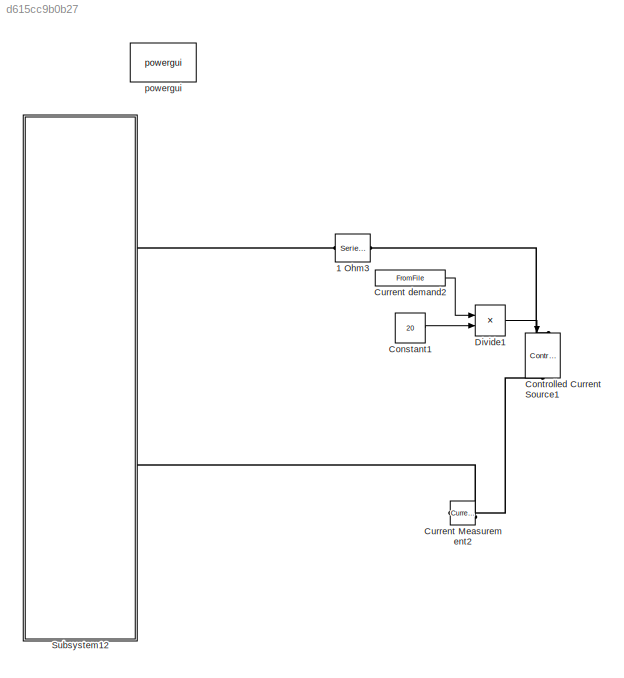
MODEL slx_d615cc9b0b27
KIND model
CONFIG AbsTol = auto
CONFIG EnableMultiTasking = off
CONFIG FixedStep = auto
CONFIG MaxStep = 0.1
CONFIG MinStep = auto
CONFIG RelTol = 1e-3
CONFIG SampleTimeConstraint = Unconstrained
CONFIG SolverName = ode23tb
CONFIG StartTime = 0.0
CONFIG StopTime = 5433
BLOCK [Reference] 1 Ohm3  REF=powerlib/Elements/Series RLC Branch
  AttributesFormatString = \n
  NameLocation = top
  Ports = [0, 0, 0, 0, 0, 1, 1]
  SourceBlock = powerlib/Elements/Series RLC Branch
  SourceProductBaseCode = PS
  SourceType = Series RLC Branch
BLOCK [Constant] Constant1
  Value = 20
BLOCK [Reference] Controlled Current Source1  REF=powerlib/Electrical
Sources/Controlled Current Source
  NameLocation = left
  Ports = [1, 0, 0, 0, 0, 1, 1]
  SourceBlock = powerlib/Electrical\nSources/Controlled Current Source
  SourceProductBaseCode = PS
  SourceType = Controlled Current Source
BLOCK [Reference] Current Measurement2  REF=powerlib/Measurements/Current Measurement
  NameLocation = top
  Ports = [0, 1, 0, 0, 0, 1, 1]
  SourceBlock = powerlib/Measurements/Current Measurement
  SourceProductBaseCode = PS
  SourceType = Current Measurement
  UserDataPersistent = on
BLOCK [FromFile] Current demand2
  FileName = <path>
  NameLocation = top
  OutDataTypeStr = double
  SampleTime = 0
BLOCK [Product] Divide1
  Inputs = */
  Ports = [2, 1]
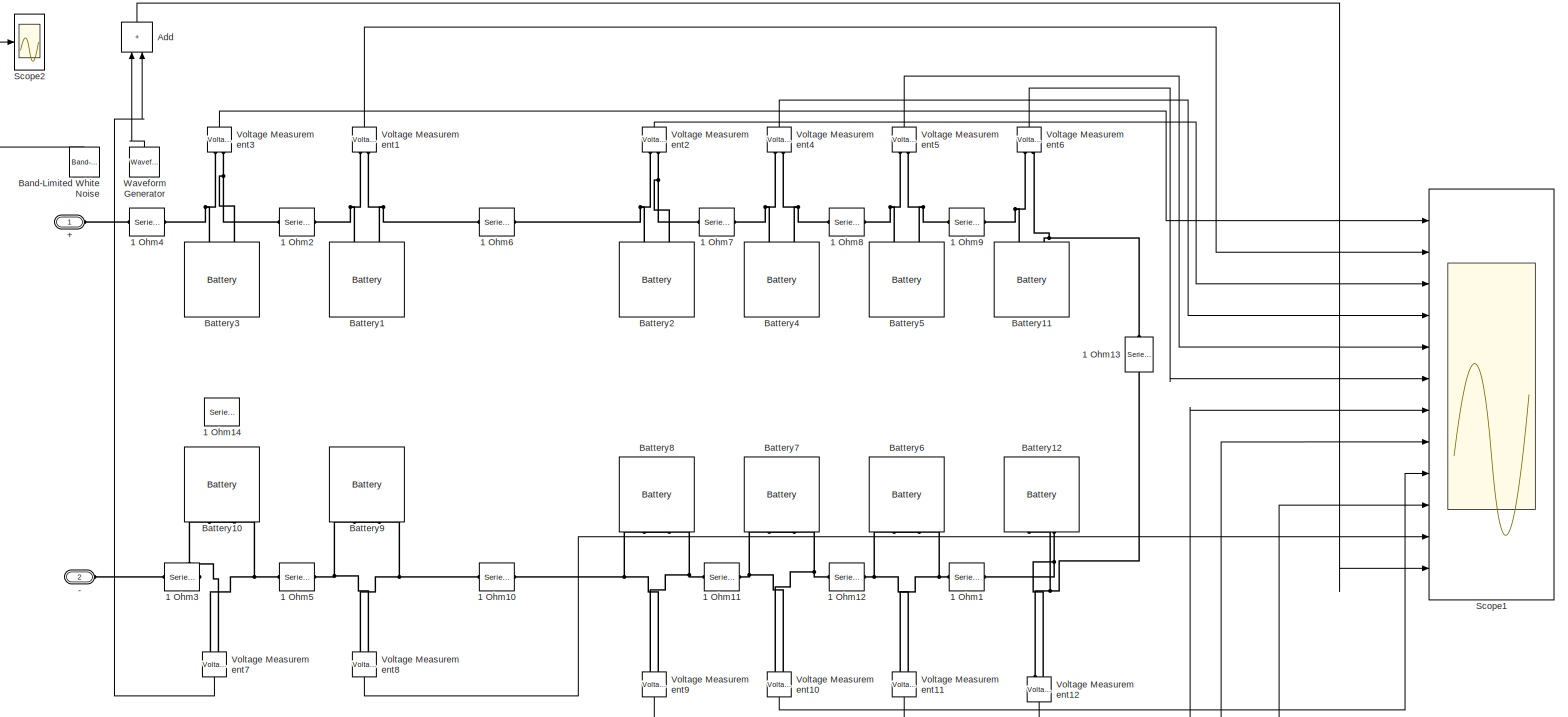
[diagram: Subsystem12 - part 1/1, most of the canvas]
BLOCK [SubSystem] Subsystem12
  NameLocation = top
  Ports = [0, 0, 0, 0, 0, 2]
  RequestExecContextInheritance = off
BLOCK [PMIOPort] Subsystem12/+
  NameLocation = top
  Side = Left
BLOCK [PMIOPort] Subsystem12/-
  NameLocation = top
  Port = 2
  Side = Left
BLOCK [Reference] Subsystem12/1 Ohm1  REF=powerlib/Elements/Series RLC Branch
  AttributesFormatString = \n
  NameLocation = top
  Ports = [0, 0, 0, 0, 0, 1, 1]
  SourceBlock = powerlib/Elements/Series RLC Branch
  SourceProductBaseCode = PS
  SourceType = Series RLC Branch
BLOCK [Reference] Subsystem12/1 Ohm10  REF=powerlib/Elements/Series RLC Branch
  AttributesFormatString = \n
  NameLocation = top
  Ports = [0, 0, 0, 0, 0, 1, 1]
  SourceBlock = powerlib/Elements/Series RLC Branch
  SourceProductBaseCode = PS
  SourceType = Series RLC Branch
BLOCK [Reference] Subsystem12/1 Ohm11  REF=powerlib/Elements/Series RLC Branch
  AttributesFormatString = \n
  NameLocation = top
  Ports = [0, 0, 0, 0, 0, 1, 1]
  SourceBlock = powerlib/Elements/Series RLC Branch
  SourceProductBaseCode = PS
  SourceType = Series RLC Branch
BLOCK [Reference] Subsystem12/1 Ohm12  REF=powerlib/Elements/Series RLC Branch
  AttributesFormatString = \n
  NameLocation = top
  Ports = [0, 0, 0, 0, 0, 1, 1]
  SourceBlock = powerlib/Elements/Series RLC Branch
  SourceProductBaseCode = PS
  SourceType = Series RLC Branch
BLOCK [Reference] Subsystem12/1 Ohm13  REF=powerlib/Elements/Series RLC Branch
  AttributesFormatString = \n
  NameLocation = right
  Ports = [0, 0, 0, 0, 0, 1, 1]
  SourceBlock = powerlib/Elements/Series RLC Branch
  SourceProductBaseCode = PS
  SourceType = Series RLC Branch
BLOCK [Reference] Subsystem12/1 Ohm14  REF=powerlib/Elements/Series RLC Branch
  AttributesFormatString = \n
  NameLocation = top
  Ports = [0, 0, 0, 0, 0, 1, 1]
  SourceBlock = powerlib/Elements/Series RLC Branch
  SourceProductBaseCode = PS
  SourceType = Series RLC Branch
BLOCK [Reference] Subsystem12/1 Ohm2  REF=powerlib/Elements/Series RLC Branch
  AttributesFormatString = \n
  NameLocation = top
  Ports = [0, 0, 0, 0, 0, 1, 1]
  SourceBlock = powerlib/Elements/Series RLC Branch
  SourceProductBaseCode = PS
  SourceType = Series RLC Branch
BLOCK [Reference] Subsystem12/1 Ohm3  REF=powerlib/Elements/Series RLC Branch
  AttributesFormatString = \n
  NameLocation = top
  Ports = [0, 0, 0, 0, 0, 1, 1]
  SourceBlock = powerlib/Elements/Series RLC Branch
  SourceProductBaseCode = PS
  SourceType = Series RLC Branch
BLOCK [Reference] Subsystem12/1 Ohm4  REF=powerlib/Elements/Series RLC Branch
  AttributesFormatString = \n
  NameLocation = top
  Ports = [0, 0, 0, 0, 0, 1, 1]
  SourceBlock = powerlib/Elements/Series RLC Branch
  SourceProductBaseCode = PS
  SourceType = Series RLC Branch
BLOCK [Reference] Subsystem12/1 Ohm5  REF=powerlib/Elements/Series RLC Branch
  AttributesFormatString = \n
  NameLocation = top
  Ports = [0, 0, 0, 0, 0, 1, 1]
  SourceBlock = powerlib/Elements/Series RLC Branch
  SourceProductBaseCode = PS
  SourceType = Series RLC Branch
BLOCK [Reference] Subsystem12/1 Ohm6  REF=powerlib/Elements/Series RLC Branch
  AttributesFormatString = \n
  NameLocation = top
  Ports = [0, 0, 0, 0, 0, 1, 1]
  SourceBlock = powerlib/Elements/Series RLC Branch
  SourceProductBaseCode = PS
  SourceType = Series RLC Branch
BLOCK [Reference] Subsystem12/1 Ohm7  REF=powerlib/Elements/Series RLC Branch
  AttributesFormatString = \n
  NameLocation = top
  Ports = [0, 0, 0, 0, 0, 1, 1]
  SourceBlock = powerlib/Elements/Series RLC Branch
  SourceProductBaseCode = PS
  SourceType = Series RLC Branch
BLOCK [Reference] Subsystem12/1 Ohm8  REF=powerlib/Elements/Series RLC Branch
  AttributesFormatString = \n
  NameLocation = top
  Ports = [0, 0, 0, 0, 0, 1, 1]
  SourceBlock = powerlib/Elements/Series RLC Branch
  SourceProductBaseCode = PS
  SourceType = Series RLC Branch
BLOCK [Reference] Subsystem12/1 Ohm9  REF=powerlib/Elements/Series RLC Branch
  AttributesFormatString = \n
  NameLocation = top
  Ports = [0, 0, 0, 0, 0, 1, 1]
  SourceBlock = powerlib/Elements/Series RLC Branch
  SourceProductBaseCode = PS
  SourceType = Series RLC Branch
BLOCK [Sum] Subsystem12/Add
  IconShape = rectangular
  NameLocation = right
  Ports = [2, 1]
BLOCK [Reference] Subsystem12/Band-Limited White Noise  REF=simulink/Sources/Band-Limited
White Noise
  NameLocation = left
  Ports = [0, 1]
  SourceBlock = simulink/Sources/Band-Limited\nWhite Noise
  SourceProductBaseCode = SL
  SourceType = Band-Limited White Noise.
BLOCK [Reference] Subsystem12/Battery1  REF=electricdrivelib/Extra Sources/Battery
  NameLocation = right
  Ports = [0, 1, 0, 0, 0, 2]
  SourceBlock = electricdrivelib/Extra Sources/Battery
  SourceProductBaseCode = PS
  SourceType = Battery
BLOCK [Reference] Subsystem12/Battery10  REF=electricdrivelib/Extra Sources/Battery
  NameLocation = right
  Ports = [0, 1, 0, 0, 0, 2]
  SourceBlock = electricdrivelib/Extra Sources/Battery
  SourceProductBaseCode = PS
  SourceType = Battery
BLOCK [Reference] Subsystem12/Battery11  REF=electricdrivelib/Extra Sources/Battery
  NameLocation = right
  Ports = [0, 1, 0, 0, 0, 2]
  SourceBlock = electricdrivelib/Extra Sources/Battery
  SourceProductBaseCode = PS
  SourceType = Battery
BLOCK [Reference] Subsystem12/Battery12  REF=electricdrivelib/Extra Sources/Battery
  NameLocation = right
  Ports = [0, 1, 0, 0, 0, 2]
  SourceBlock = electricdrivelib/Extra Sources/Battery
  SourceProductBaseCode = PS
  SourceType = Battery
BLOCK [Reference] Subsystem12/Battery2  REF=electricdrivelib/Extra Sources/Battery
  NameLocation = right
  Ports = [0, 1, 0, 0, 0, 2]
  SourceBlock = electricdrivelib/Extra Sources/Battery
  SourceProductBaseCode = PS
  SourceType = Battery
BLOCK [Reference] Subsystem12/Battery3  REF=electricdrivelib/Extra Sources/Battery
  NameLocation = right
  Ports = [0, 1, 0, 0, 0, 2]
  SourceBlock = electricdrivelib/Extra Sources/Battery
  SourceProductBaseCode = PS
  SourceType = Battery
BLOCK [Reference] Subsystem12/Battery4  REF=electricdrivelib/Extra Sources/Battery
  NameLocation = right
  Ports = [0, 1, 0, 0, 0, 2]
  SourceBlock = electricdrivelib/Extra Sources/Battery
  SourceProductBaseCode = PS
  SourceType = Battery
BLOCK [Reference] Subsystem12/Battery5  REF=electricdrivelib/Extra Sources/Battery
  NameLocation = right
  Ports = [0, 1, 0, 0, 0, 2]
  SourceBlock = electricdrivelib/Extra Sources/Battery
  SourceProductBaseCode = PS
  SourceType = Battery
BLOCK [Reference] Subsystem12/Battery6  REF=electricdrivelib/Extra Sources/Battery
  NameLocation = right
  Ports = [0, 1, 0, 0, 0, 2]
  SourceBlock = electricdrivelib/Extra Sources/Battery
  SourceProductBaseCode = PS
  SourceType = Battery
BLOCK [Reference] Subsystem12/Battery7  REF=electricdrivelib/Extra Sources/Battery
  NameLocation = right
  Ports = [0, 1, 0, 0, 0, 2]
  SourceBlock = electricdrivelib/Extra Sources/Battery
  SourceProductBaseCode = PS
  SourceType = Battery
BLOCK [Reference] Subsystem12/Battery8  REF=electricdrivelib/Extra Sources/Battery
  NameLocation = right
  Ports = [0, 1, 0, 0, 0, 2]
  SourceBlock = electricdrivelib/Extra Sources/Battery
  SourceProductBaseCode = PS
  SourceType = Battery
BLOCK [Reference] Subsystem12/Battery9  REF=electricdrivelib/Extra Sources/Battery
  NameLocation = right
  Ports = [0, 1, 0, 0, 0, 2]
  SourceBlock = electricdrivelib/Extra Sources/Battery
  SourceProductBaseCode = PS
  SourceType = Battery
BLOCK [Scope] Subsystem12/Scope1
  Floating = off
  NumInputPorts = 12
  Ports = [12]
  ScopeSpecificationString = Simulink.scopes.TimeScopeBlockCfg('CurrentConfiguration', extmgr.ConfigurationSet(extmgr.Configuration('Core','General UI',true),extmgr.Configuration('Core','Source UI',true),extmgr.Configuration('Sources','WiredSimulink',true,'DataLoggingVariableName','ScopeData1','DataLogging',true,'DataLoggingSaveFormat','StructureWithTime'),extmgr.Configuration('Visuals','Time Domain',true,'SerializedDisplays'...<+2082ch>
BLOCK [Scope] Subsystem12/Scope2
  Floating = off
  NumInputPorts = 1
  Ports = [1]
  ScopeSpecificationString = Simulink.scopes.TimeScopeBlockCfg('CurrentConfiguration', extmgr.ConfigurationSet(extmgr.Configuration('Core','General UI',true),extmgr.Configuration('Core','Source UI',true),extmgr.Configuration('Sources','WiredSimulink',true,'DataLoggingVariableName','ScopeData2','DataLogging',true,'DataLoggingSaveFormat','StructureWithTime','DataLoggingDecimateData',true,'DataLoggingDecimation','10'),extmgr.Con...<+1908ch>
BLOCK [Reference] Subsystem12/Voltage Measurement1  REF=powerlib/Measurements/Voltage Measurement
  NameLocation = right
  Ports = [0, 1, 0, 0, 0, 2]
  SourceBlock = powerlib/Measurements/Voltage Measurement
  SourceProductBaseCode = PS
  SourceType = Voltage Measurement
  UserDataPersistent = on
BLOCK [Reference] Subsystem12/Voltage Measurement10  REF=powerlib/Measurements/Voltage Measurement
  NameLocation = right
  Ports = [0, 1, 0, 0, 0, 2]
  SourceBlock = powerlib/Measurements/Voltage Measurement
  SourceProductBaseCode = PS
  SourceType = Voltage Measurement
  UserDataPersistent = on
BLOCK [Reference] Subsystem12/Voltage Measurement11  REF=powerlib/Measurements/Voltage Measurement
  NameLocation = right
  Ports = [0, 1, 0, 0, 0, 2]
  SourceBlock = powerlib/Measurements/Voltage Measurement
  SourceProductBaseCode = PS
  SourceType = Voltage Measurement
  UserDataPersistent = on
BLOCK [Reference] Subsystem12/Voltage Measurement12  REF=powerlib/Measurements/Voltage Measurement
  NameLocation = right
  Ports = [0, 1, 0, 0, 0, 2]
  SourceBlock = powerlib/Measurements/Voltage Measurement
  SourceProductBaseCode = PS
  SourceType = Voltage Measurement
  UserDataPersistent = on
BLOCK [Reference] Subsystem12/Voltage Measurement2  REF=powerlib/Measurements/Voltage Measurement
  NameLocation = right
  Ports = [0, 1, 0, 0, 0, 2]
  SourceBlock = powerlib/Measurements/Voltage Measurement
  SourceProductBaseCode = PS
  SourceType = Voltage Measurement
  UserDataPersistent = on
BLOCK [Reference] Subsystem12/Voltage Measurement3  REF=powerlib/Measurements/Voltage Measurement
  NameLocation = right
  Ports = [0, 1, 0, 0, 0, 2]
  SourceBlock = powerlib/Measurements/Voltage Measurement
  SourceProductBaseCode = PS
  SourceType = Voltage Measurement
  UserDataPersistent = on
BLOCK [Reference] Subsystem12/Voltage Measurement4  REF=powerlib/Measurements/Voltage Measurement
  NameLocation = right
  Ports = [0, 1, 0, 0, 0, 2]
  SourceBlock = powerlib/Measurements/Voltage Measurement
  SourceProductBaseCode = PS
  SourceType = Voltage Measurement
  UserDataPersistent = on
BLOCK [Reference] Subsystem12/Voltage Measurement5  REF=powerlib/Measurements/Voltage Measurement
  NameLocation = right
  Ports = [0, 1, 0, 0, 0, 2]
  SourceBlock = powerlib/Measurements/Voltage Measurement
  SourceProductBaseCode = PS
  SourceType = Voltage Measurement
  UserDataPersistent = on
BLOCK [Reference] Subsystem12/Voltage Measurement6  REF=powerlib/Measurements/Voltage Measurement
  NameLocation = right
  Ports = [0, 1, 0, 0, 0, 2]
  SourceBlock = powerlib/Measurements/Voltage Measurement
  SourceProductBaseCode = PS
  SourceType = Voltage Measurement
  UserDataPersistent = on
BLOCK [Reference] Subsystem12/Voltage Measurement7  REF=powerlib/Measurements/Voltage Measurement
  NameLocation = right
  Ports = [0, 1, 0, 0, 0, 2]
  SourceBlock = powerlib/Measurements/Voltage Measurement
  SourceProductBaseCode = PS
  SourceType = Voltage Measurement
  UserDataPersistent = on
BLOCK [Reference] Subsystem12/Voltage Measurement8  REF=powerlib/Measurements/Voltage Measurement
  NameLocation = right
  Ports = [0, 1, 0, 0, 0, 2]
  SourceBlock = powerlib/Measurements/Voltage Measurement
  SourceProductBaseCode = PS
  SourceType = Voltage Measurement
  UserDataPersistent = on
BLOCK [Reference] Subsystem12/Voltage Measurement9  REF=powerlib/Measurements/Voltage Measurement
  NameLocation = right
  Ports = [0, 1, 0, 0, 0, 2]
  SourceBlock = powerlib/Measurements/Voltage Measurement
  SourceProductBaseCode = PS
  SourceType = Voltage Measurement
  UserDataPersistent = on
BLOCK [Reference] Subsystem12/Waveform Generator  REF=simulink/Sources/Waveform
Generator
  NameLocation = right
  Ports = [0, 1]
  SourceBlock = simulink/Sources/Waveform\nGenerator
  SourceProductBaseCode = SL
  SourceType = WaveformGenerator
BLOCK [Reference] powergui  REF=powerlib/powergui
  Ports = []
  Priority = 1
  SourceBlock = powerlib/powergui
  SourceProductBaseCode = PS
  SourceType = PSB option menu block
LINE Constant1:1 -> Divide1:2
LINE Current demand2:1 -> Divide1:1
LINE Divide1:1 -> Controlled Current Source1:1
LINE Subsystem12/Add:1 -> Subsystem12/Scope1:12
LINE Subsystem12/Band-Limited White Noise:1 -> Subsystem12/Scope2:1
LINE Subsystem12/Voltage Measurement10:1 -> Subsystem12/Scope1:9
LINE Subsystem12/Voltage Measurement11:1 -> Subsystem12/Scope1:8
LINE Subsystem12/Voltage Measurement12:1 -> Subsystem12/Scope1:7
LINE Subsystem12/Voltage Measurement1:1 -> Subsystem12/Scope1:2
LINE Subsystem12/Voltage Measurement2:1 -> Subsystem12/Scope1:3
LINE Subsystem12/Voltage Measurement3:1 -> Subsystem12/Scope1:1
LINE Subsystem12/Voltage Measurement4:1 -> Subsystem12/Scope1:4
LINE Subsystem12/Voltage Measurement5:1 -> Subsystem12/Scope1:5
LINE Subsystem12/Voltage Measurement6:1 -> Subsystem12/Scope1:6
LINE Subsystem12/Voltage Measurement7:1 -> Subsystem12/Add:2
LINE Subsystem12/Voltage Measurement8:1 -> Subsystem12/Scope1:11
LINE Subsystem12/Voltage Measurement9:1 -> Subsystem12/Scope1:10
LINE Subsystem12/Waveform Generator:1 -> Subsystem12/Add:1
PLINE 1 Ohm3:LConn1 -- Controlled Current Source1:LConn1
PLINE 1 Ohm3:RConn1 -- Subsystem12:LConn1
PLINE Controlled Current Source1:RConn1 -- Current Measurement2:LConn1
PLINE Current Measurement2:RConn1 -- Subsystem12:LConn2
PLINE Subsystem12/+:RConn1 -- Subsystem12/1 Ohm4:RConn1
PLINE Subsystem12/-:RConn1 -- Subsystem12/1 Ohm3:RConn1
PNET net1: Subsystem12/1 Ohm10:LConn1 -- Subsystem12/Battery8:LConn2 -- Subsystem12/Voltage Measurement9:LConn2
PNET net2: Subsystem12/1 Ohm10:RConn1 -- Subsystem12/Battery9:LConn1 -- Subsystem12/Voltage Measurement8:LConn1
PNET net3: Subsystem12/1 Ohm11:LConn1 -- Subsystem12/Battery7:LConn2 -- Subsystem12/Voltage Measurement10:LConn2
PNET net4: Subsystem12/1 Ohm11:RConn1 -- Subsystem12/Battery8:LConn1 -- Subsystem12/Voltage Measurement9:LConn1
PNET net5: Subsystem12/1 Ohm12:LConn1 -- Subsystem12/Battery6:LConn2 -- Subsystem12/Voltage Measurement11:LConn2
PNET net6: Subsystem12/1 Ohm12:RConn1 -- Subsystem12/Battery7:LConn1 -- Subsystem12/Voltage Measurement10:LConn1
PNET net7: Subsystem12/1 Ohm13:LConn1 -- Subsystem12/Battery12:LConn1 -- Subsystem12/Voltage Measurement12:LConn1
PNET net8: Subsystem12/1 Ohm13:RConn1 -- Subsystem12/Battery11:LConn2 -- Subsystem12/Voltage Measurement6:LConn2
PNET net9: Subsystem12/1 Ohm1:LConn1 -- Subsystem12/Battery12:LConn2 -- Subsystem12/Voltage Measurement12:LConn2
PNET net10: Subsystem12/1 Ohm1:RConn1 -- Subsystem12/Battery6:LConn1 -- Subsystem12/Voltage Measurement11:LConn1
PNET net11: Subsystem12/1 Ohm2:LConn1 -- Subsystem12/Battery1:LConn1 -- Subsystem12/Voltage Measurement1:LConn1
PNET net12: Subsystem12/1 Ohm2:RConn1 -- Subsystem12/Battery3:LConn2 -- Subsystem12/Voltage Measurement3:LConn2
PNET net13: Subsystem12/1 Ohm3:LConn1 -- Subsystem12/Battery10:LConn2 -- Subsystem12/Voltage Measurement7:LConn2
PNET net14: Subsystem12/1 Ohm4:LConn1 -- Subsystem12/Battery3:LConn1 -- Subsystem12/Voltage Measurement3:LConn1
PNET net15: Subsystem12/1 Ohm5:LConn1 -- Subsystem12/Battery9:LConn2 -- Subsystem12/Voltage Measurement8:LConn2
PNET net16: Subsystem12/1 Ohm5:RConn1 -- Subsystem12/Battery10:LConn1 -- Subsystem12/Voltage Measurement7:LConn1
PNET net17: Subsystem12/1 Ohm6:LConn1 -- Subsystem12/Battery2:LConn1 -- Subsystem12/Voltage Measurement2:LConn1
PNET net18: Subsystem12/1 Ohm6:RConn1 -- Subsystem12/Battery1:LConn2 -- Subsystem12/Voltage Measurement1:LConn2
PNET net19: Subsystem12/1 Ohm7:LConn1 -- Subsystem12/Battery4:LConn1 -- Subsystem12/Voltage Measurement4:LConn1
PNET net20: Subsystem12/1 Ohm7:RConn1 -- Subsystem12/Battery2:LConn2 -- Subsystem12/Voltage Measurement2:LConn2
PNET net21: Subsystem12/1 Ohm8:LConn1 -- Subsystem12/Battery5:LConn1 -- Subsystem12/Voltage Measurement5:LConn1
PNET net22: Subsystem12/1 Ohm8:RConn1 -- Subsystem12/Battery4:LConn2 -- Subsystem12/Voltage Measurement4:LConn2
PNET net23: Subsystem12/1 Ohm9:LConn1 -- Subsystem12/Battery11:LConn1 -- Subsystem12/Voltage Measurement6:LConn1
PNET net24: Subsystem12/1 Ohm9:RConn1 -- Subsystem12/Battery5:LConn2 -- Subsystem12/Voltage Measurement5:LConn2
note: PNET lines group multi-terminal physical nets as a canonical sorted terminal list (undirected conserving connections); 2-terminal nets keep the pairwise PLINE form
note: 1 file-system path scrubbed to <path> (not preserved elsewhere — flat text is the only slx artifact)
